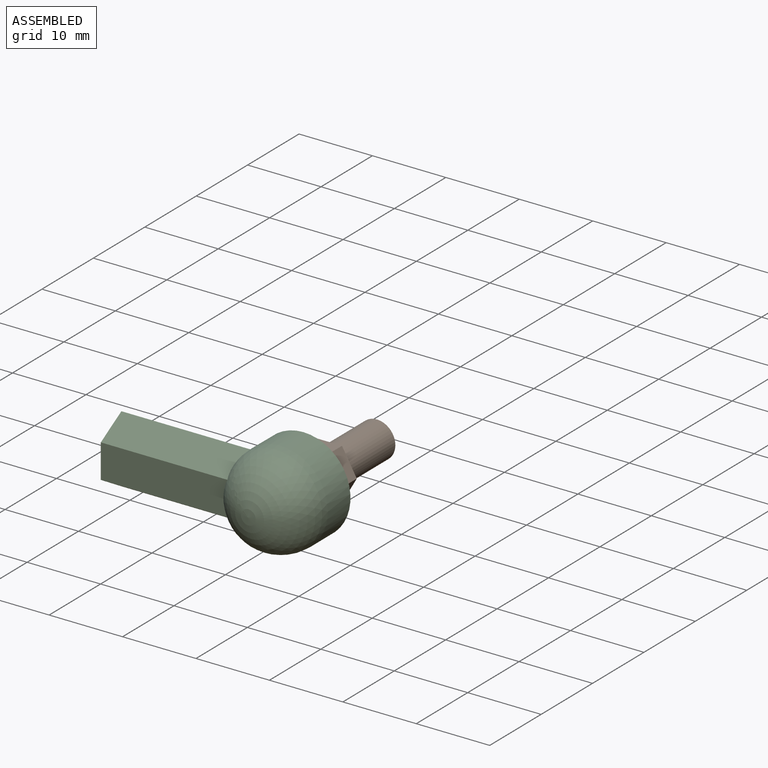
[diagram: assembled view]
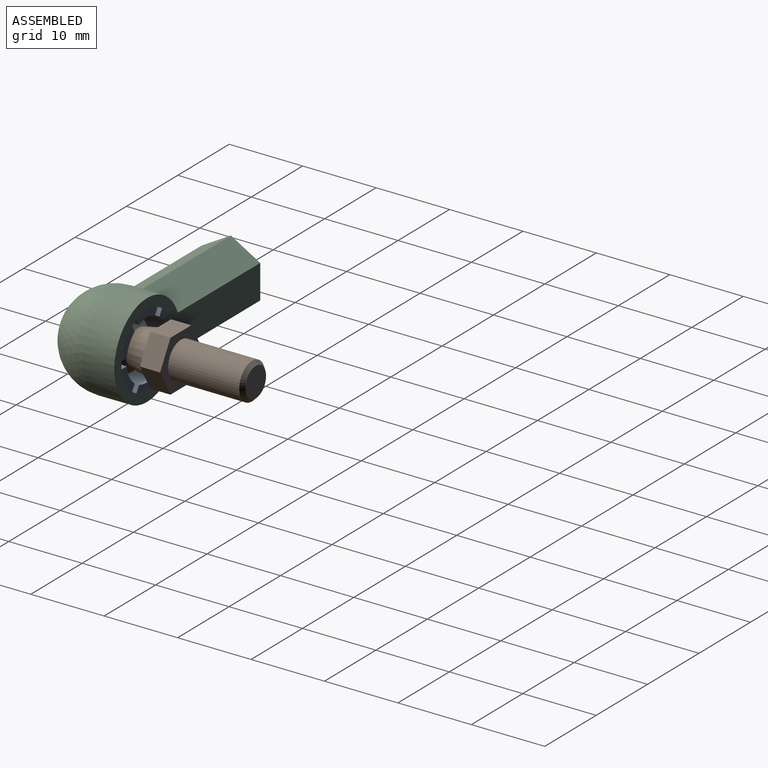
[diagram: assembled view, second angle]
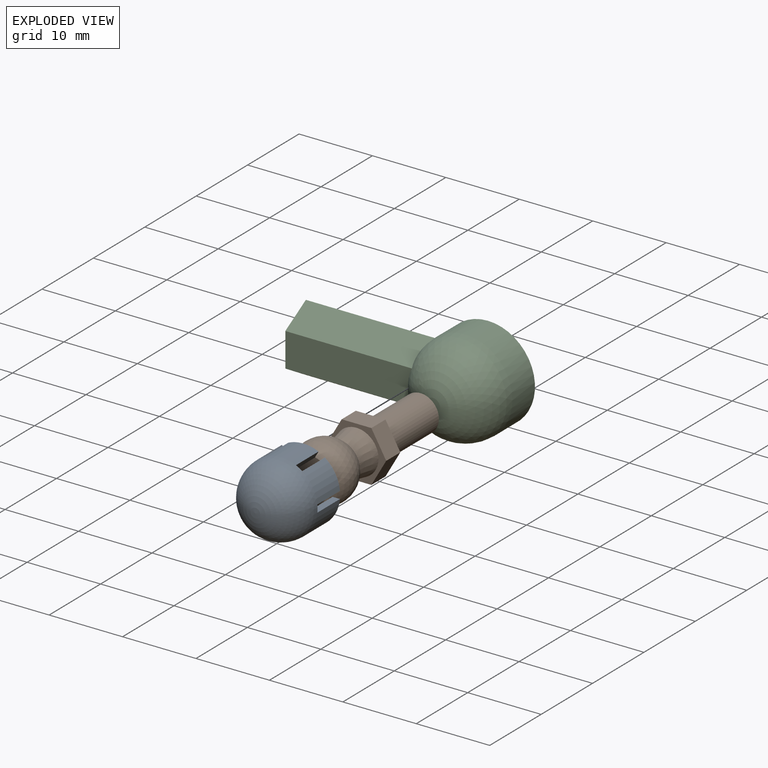
[diagram: exploded view]
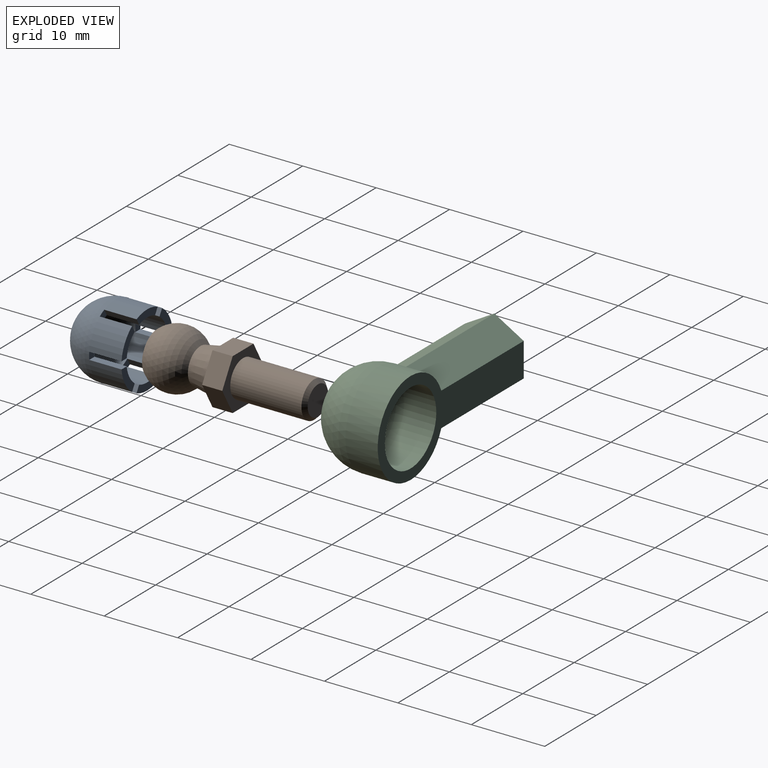
[diagram: exploded view, second angle]
ASSEMBLY  parts=3 mates=2
PART A: 38 faces, bbox 10x9.4x10 mm
  f0: sphere r=5mm, area 157.1mm2, adj f5,f6,f10,f13,f17,f18,f22,f25
  f1: sphere r=4mm, area 100.6mm2, adj f5,f6,f8,f11,f17,f18,f20,f23
  f2: plane 4.4x0.87mm, normal (0.87,0,0.5), area 4.4mm2, adj f5,f35,f36,f37
  f3: plane 4.4x0.87mm, normal (0.87,0,0.5), area 4.4mm2, adj f6,f8,f9,f10
  f4: plane 4.4x0.87mm, normal (-0.87,0,-0.5), area 4.4mm2, adj f5,f11,f12,f13
  f5: plane 1.37x1.37mm, normal (0,1,0), area 1mm2, adj f0,f1,f2,f4
  f6: plane 1.37x1.37mm, normal (0,1,0), area 1mm2, adj f0,f1,f3,f7
  f7: plane 4.4x0.87mm, normal (-0.87,0,-0.5), area 4.4mm2, adj f6,f32,f33,f34
  f8: cylinder r=4mm len=4.4mm, axis (0,1,0), area 14mm2, adj f1,f3,f9,f19
  f9: plane 4.11x1.31mm, normal (0,1,0), area 3.7mm2, adj f3,f8,f10,f19
  f10: cylinder r=5mm len=4.4mm, axis (0,1,0), area 18.6mm2, adj f0,f3,f9,f19
  f11: cylinder r=4mm len=4.4mm, axis (0,1,0), area 14mm2, adj f1,f4,f12,f14
  f12: plane 4.11x1.31mm, normal (0,1,0), area 3.7mm2, adj f4,f11,f13,f14
  f13: cylinder r=5mm len=4.4mm, axis (0,1,0), area 18.6mm2, adj f0,f4,f12,f14
  f14: plane 4.4x0.87mm, normal (0.87,0,-0.5), area 4.4mm2, adj f11,f12,f13,f17
  f15: plane 4.4x0.87mm, normal (0.87,0,-0.5), area 4.4mm2, adj f18,f20,f21,f22
  f16: plane 4.4x0.87mm, normal (-0.87,0,0.5), area 4.4mm2, adj f17,f23,f24,f25
  f17: plane 1.37x1.37mm, normal (0,1,0), area 1mm2, adj f0,f1,f14,f16
  f18: plane 1.37x1.37mm, normal (0,1,0), area 1mm2, adj f0,f1,f15,f19
  f19: plane 4.4x0.87mm, normal (-0.87,0,0.5), area 4.4mm2, adj f8,f9,f10,f18
  f20: cylinder r=4mm len=4.4mm, axis (0,1,0), area 14mm2, adj f1,f15,f21,f26
  f21: plane 3.56x2.56mm, normal (0,1,0), area 3.7mm2, adj f15,f20,f22,f26
  f22: cylinder r=5mm len=4.4mm, axis (0,1,0), area 18.6mm2, adj f0,f15,f21,f26
  f23: cylinder r=4mm len=4.4mm, axis (0,1,0), area 14mm2, adj f1,f16,f24,f31
  f24: plane 3.56x2.56mm, normal (0,1,0), area 3.7mm2, adj f16,f23,f25,f31
  f25: cylinder r=5mm len=4.4mm, axis (0,1,0), area 18.6mm2, adj f0,f16,f24,f31
  f26: plane 4.4x1.01mm, normal (0,0,1), area 4.4mm2, adj f20,f21,f22,f29
  f27: plane 4.4x1.01mm, normal (0,0,1), area 4.4mm2, adj f30,f32,f33,f34
  f28: plane 4.4x1.01mm, normal (0,0,-1), area 4.4mm2, adj f29,f35,f36,f37
  f29: plane 1.03x1mm, normal (0,1,0), area 1mm2, adj f0,f1,f26,f28
  f30: plane 1.03x1mm, normal (0,1,0), area 1mm2, adj f0,f1,f27,f31
  f31: plane 4.4x1.01mm, normal (0,0,-1), area 4.4mm2, adj f23,f24,f25,f30
  f32: cylinder r=4mm len=4.4mm, axis (0,1,0), area 14mm2, adj f1,f7,f27,f33
  f33: plane 3.56x2.56mm, normal (0,1,0), area 3.7mm2, adj f7,f27,f32,f34
  f34: cylinder r=5mm len=4.4mm, axis (0,1,0), area 18.6mm2, adj f0,f7,f27,f33
  f35: cylinder r=4mm len=4.4mm, axis (0,1,0), area 14mm2, adj f1,f2,f28,f36
  f36: plane 3.56x2.56mm, normal (0,1,0), area 3.7mm2, adj f2,f28,f35,f37
  f37: cylinder r=5mm len=4.4mm, axis (0,1,0), area 18.6mm2, adj f0,f2,f28,f36
PART B: 14 faces, bbox 8.1x21.9x8 mm
  f0: cylinder r=2.5mm len=9.7mm, axis (0,1,0), area 152.4mm2, adj f1,f5
  f1: cone r=2.25mm half-angle=45deg, axis (0,-1,0), area 10mm2, adj f0,f13
  f2: sphere r=4mm, area 147mm2, adj f3,f4
  f3: cone r=2.5mm half-angle=10.6deg, axis (0,1,0), area 53.2mm2, adj f2,f12
  f4: plane 5.96x5.96mm, normal (0,-1,0), area 27.9mm2, adj f2
  f5: plane 8.08x7mm, normal (0,1,0), area 22.8mm2, adj f0,f6,f7,f8,f9,f10,f11
  f6: plane 3.5x2.75mm, normal (0.87,0,0.5), area 11.1mm2, adj f5,f7,f11,f12
  f7: plane 3.5x2.75mm, normal (0.87,0,-0.5), area 11.1mm2, adj f5,f6,f8,f12
  f8: plane 4.04x2.75mm, normal (0,0,-1), area 11.1mm2, adj f5,f7,f9,f12
  f9: plane 3.5x2.75mm, normal (-0.87,0,-0.5), area 11.1mm2, adj f5,f8,f10,f12
  f10: plane 3.5x2.75mm, normal (-0.87,0,0.5), area 11.1mm2, adj f5,f9,f11,f12
  f11: plane 4.04x2.75mm, normal (0,0,1), area 11.1mm2, adj f5,f6,f10,f12
  f12: plane 8.08x7mm, normal (0,-1,0), area 14.2mm2, adj f3,f6,f7,f8,f9,f10,f11
  f13: plane 4x4mm, normal (0,1,0), area 12.6mm2, adj f1
PART C: 16 faces, bbox 28.4x10.8x12.8 mm
  f0: cylinder r=6.4mm len=12.8mm, axis (0,1,0), area 143.4mm2, adj f1,f9,f10,f12,f13,f15
  f1: sphere r=6.4mm, area 230.4mm2, adj f0,f9,f11,f12
  f2: cylinder r=2mm len=4mm, axis (-1,0,0), area 37.7mm2, adj f3,f8
  f3: cone r=1mm half-angle=60deg, axis (-1,0,0), area 14.5mm2, adj f2
  f4: cone r=2.25mm half-angle=45deg, axis (-1,0,0), area 10.1mm2, adj f5,f14
  f5: cylinder r=1.99mm len=10.5mm, axis (-1,0,0), area 131.6mm2, adj f4,f8
  f6: sphere r=5mm, area 157.1mm2, adj f7
  f7: cylinder r=5mm len=10mm, axis (0,1,0), area 138.2mm2, adj f6,f15
  f8: plane 4x4mm, normal (1,0,0), area 0.1mm2, adj f2,f5
  f9: plane 17.57x4.01mm, normal (0,-0.5,0.87), area 78.7mm2, adj f0,f1,f10,f11,f14
  f10: plane 17.57x4mm, normal (0,0.5,0.87), area 77mm2, adj f0,f9,f14,f15
  f11: plane 17.24x4.62mm, normal (0,-1,0), area 78mm2, adj f1,f9,f12,f14
  f12: plane 17.57x4.01mm, normal (0,-0.5,-0.87), area 78.7mm2, adj f0,f1,f11,f13,f14
  f13: plane 17.57x4mm, normal (0,0.5,-0.87), area 77mm2, adj f0,f12,f14,f15
  f14: plane 9.24x8mm, normal (-1,0,0), area 35.8mm2, adj f4,f9,f10,f11,f12,f13,f15
  f15: plane 28.4x12.8mm, normal (0,1,0), area 122.8mm2, adj f0,f7,f10,f13,f14
PLACE A t=(-7.95,-2.13,-2.24)mm
PLACE B rot(axis=(0,-1,0),180deg) t=(-7.95,-2.13,-2.24)mm
PLACE C t=(-7.95,-2.13,-2.24)mm fixed
MATE revolute B.f0 <-> A.f8  axis (0,1,0) through (-7.95,2.59,-2.24)mm
MATE fastened C.f0 <-> A.f8  axis (0,1,0) through (-7.95,0.07,-2.24)mm
